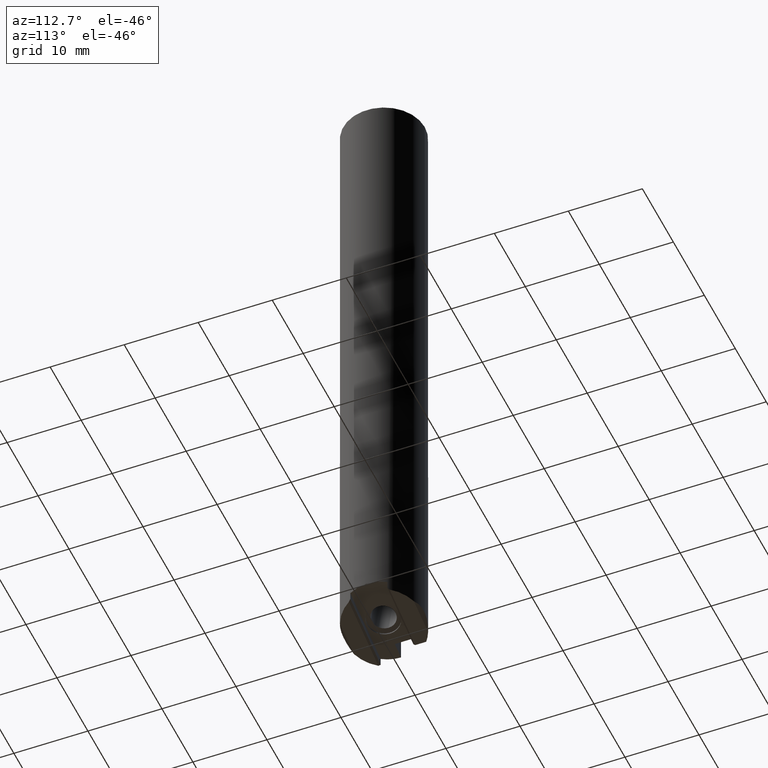
[diagram: clean part render]
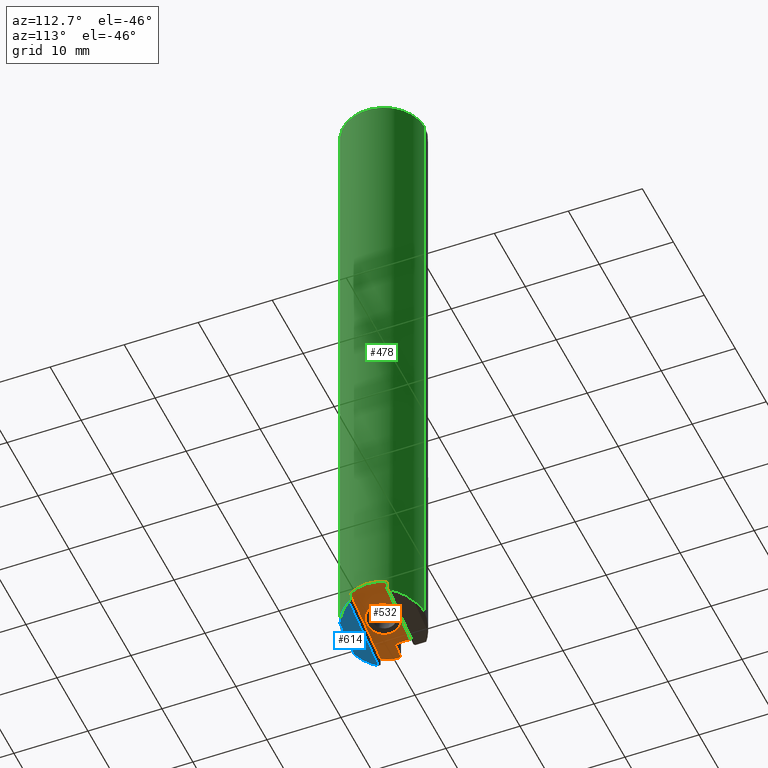
[diagram: same view with three faces highlighted in distinct colors, each labeled with its STEP entity id]
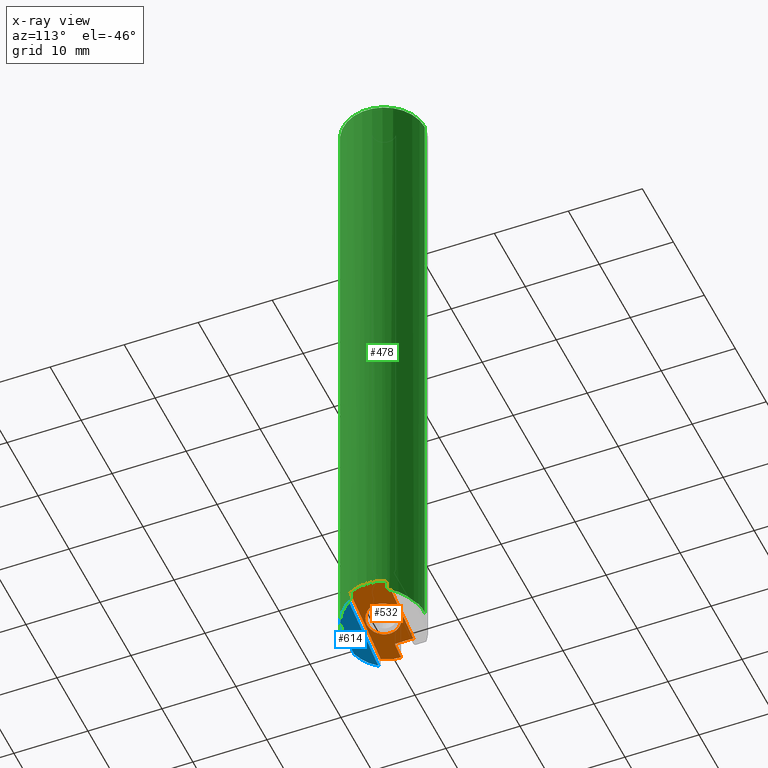
[diagram: x-ray of the same camera — body ghosted, the three highlighted faces saturated]
A machine part, auxiliary view with three faces highlighted in distinct colors.
The next image is the same camera in x-ray (body ghosted, the three faces saturated) — at least one of them is partly hidden behind the body in this view.
Their STEP definitions:

[orange] entity #532 — the highlighted planar face has unit normal (-0.2419, 0, 0.9703).
#322=VERTEX_POINT('NONE',#922);
#342=VERTEX_POINT('NONE',#945);
#380=EDGE_CURVE('NONE',#342,#792,#986,.T.);
#420=VERTEX_POINT('NONE',#1026);
#438=VERTEX_POINT('NONE',#1045);
#444=EDGE_CURVE('NONE',#766,#420,#1051,.T.);
#448=EDGE_CURVE('NONE',#322,#466,#1055,.T.);
#464=EDGE_CURVE('NONE',#874,#420,#1071,.T.);
#466=VERTEX_POINT('NONE',#1073);
#532=ADVANCED_FACE('NONE',(#1146,#1147),#1148,.F.);
#700=EDGE_CURVE('NONE',#766,#438,#1335,.T.);
#704=EDGE_CURVE('NONE',#792,#874,#1341,.T.);
#720=EDGE_CURVE('NONE',#438,#342,#1359,.T.);
#732=EDGE_CURVE('NONE',#466,#322,#1372,.T.);
#766=VERTEX_POINT('NONE',#1411);
#792=VERTEX_POINT('NONE',#1441);
#874=VERTEX_POINT('NONE',#1531);
#922=CARTESIAN_POINT('',(-1.95190510416878,2.75545529808154E-016,-10.8270935490369));
#945=CARTESIAN_POINT('',(-5.5,0.0,-11.7117329633126));
#986=(B_SPLINE_CURVE(3,(#1736,#1737,#1738,#1739),.UNSPECIFIED.,.F.,.F.)B_SPLINE_CURVE_WITH_KNOTS((4,4),(3.14159265358979,3.61345449086943),.UNSPECIFIED.)RATIONAL_B_SPLINE_CURVE((1.0,0.981531441395684,0.981531441395684,1.0))BOUNDED_CURVE()REPRESENTATION_ITEM('')GEOMETRIC_REPRESENTATION_ITEM()CURVE());
#1026=CARTESIAN_POINT('',(4.89897948556636,2.5,-9.11897617656915));
#1045=CARTESIAN_POINT('',(-3.5,0.0,-11.2130769576263));
#1051=LINE('',#1883,#1884);
#1055=CIRCLE('',#1900,2.25);
#1071=(B_SPLINE_CURVE(3,(#1940,#1941,#1942,#1943),.UNSPECIFIED.,.F.,.F.)B_SPLINE_CURVE_WITH_KNOTS((4,4),(5.81132346989994,6.75504714445923),.UNSPECIFIED.)RATIONAL_B_SPLINE_CURVE((1.0,0.927149028553498,0.927149028553498,1.0))BOUNDED_CURVE()REPRESENTATION_ITEM('')GEOMETRIC_REPRESENTATION_ITEM()CURVE());
#1073=CARTESIAN_POINT('',(2.4144256640732,0.0,-9.73844501883844));
#1146=FACE_OUTER_BOUND('',#2138,.T.);
#1147=FACE_BOUND('',#2139,.T.);
#1148=PLANE('',#2140);
#1335=LINE('',#2487,#2488);
#1341=LINE('',#2495,#2496);
#1359=LINE('',#2519,#2520);
#1372=CIRCLE('',#2536,2.25);
#1411=CARTESIAN_POINT('',(-3.5,2.5,-11.2130769576263));
#1441=CARTESIAN_POINT('',(-4.89897948556636,-2.5,-11.5618817187811));
#1531=CARTESIAN_POINT('',(4.89897948556636,-2.5,-9.11897617656915));
#1736=CARTESIAN_POINT('',(-5.5,0.0,-11.7117329633126));
#1737=CARTESIAN_POINT('',(-5.5,-0.873203604745345,-11.7117329633126));
#1738=CARTESIAN_POINT('',(-5.29589021499606,-1.72221699156908,-11.6608426782568));
#1739=CARTESIAN_POINT('',(-4.89897948556636,-2.5,-11.5618817187811));
#1883=CARTESIAN_POINT('',(13.0,2.5,-7.09916491071377));
#1884=VECTOR('',#2998,1000.0);
#1900=AXIS2_PLACEMENT_3D('',#2999,#3000,#3001);
#1940=CARTESIAN_POINT('',(4.89897948556636,-2.5,-9.11897617656915));
#1941=CARTESIAN_POINT('',(5.71608195156117,-0.898812712594295,-8.91524965060442));
#1942=CARTESIAN_POINT('',(5.71608195156117,0.898812712594293,-8.91524965060442));
#1943=CARTESIAN_POINT('',(4.89897948556636,2.5,-9.11897617656915));
#2138=EDGE_LOOP('',(#3090,#3091,#3092,#3093,#3094,#3095));
#2139=EDGE_LOOP('',(#3096,#3097));
#2140=AXIS2_PLACEMENT_3D('',#3098,#3099,#3100);
#2487=CARTESIAN_POINT('',(-3.5,-2.5,-11.2130769576263));
#2488=VECTOR('',#3313,1000.0);
#2495=CARTESIAN_POINT('',(13.0,-2.5,-7.09916491071377));
#2496=VECTOR('',#3322,1000.0);
#2519=CARTESIAN_POINT('',(13.0,0.0,-7.09916491071377));
#2520=VECTOR('',#3347,1000.0);
#2536=AXIS2_PLACEMENT_3D('',#3356,#3357,#3358);
#2998=DIRECTION('',(0.970295726275996,-0.0,0.241921895599668));
#2999=CARTESIAN_POINT('',(0.231260279952212,0.0,-10.2827692839377));
#3000=DIRECTION('',(0.241921895599668,0.0,-0.970295726275996));
#3001=DIRECTION('',(0.970295726275996,0.0,0.241921895599668));
#3090=ORIENTED_EDGE('',*,*,#700,.F.);
#3091=ORIENTED_EDGE('',*,*,#444,.T.);
#3092=ORIENTED_EDGE('',*,*,#464,.F.);
#3093=ORIENTED_EDGE('',*,*,#704,.F.);
#3094=ORIENTED_EDGE('',*,*,#380,.F.);
#3095=ORIENTED_EDGE('',*,*,#720,.F.);
#3096=ORIENTED_EDGE('',*,*,#732,.F.);
#3097=ORIENTED_EDGE('',*,*,#448,.F.);
#3098=CARTESIAN_POINT('',(13.0,-2.5,-7.09916491071377));
#3099=DIRECTION('',(-0.241921895599668,0.0,0.970295726275996));
#3100=DIRECTION('',(0.0,1.0,0.0));
#3313=DIRECTION('',(0.0,-1.0,0.0));
#3322=DIRECTION('',(0.970295726275996,-0.0,0.241921895599668));
#3347=DIRECTION('',(-0.970295726275996,0.0,-0.241921895599668));
#3356=CARTESIAN_POINT('',(0.231260279952212,0.0,-10.2827692839377));
#3357=DIRECTION('',(0.241921895599668,0.0,-0.970295726275996));
#3358=DIRECTION('',(0.970295726275996,0.0,0.241921895599668));

[blue] entity #614 — the highlighted planar face has unit normal (-0.2419, 0, 0.9703).
#414=VERTEX_POINT('NONE',#1020);
#446=EDGE_CURVE('NONE',#858,#782,#1053,.T.);
#454=EDGE_CURVE('NONE',#582,#782,#1061,.T.);
#490=EDGE_CURVE('NONE',#858,#414,#1098,.T.);
#582=VERTEX_POINT('NONE',#1204);
#614=ADVANCED_FACE('NONE',(#1242),#1243,.F.);
#744=EDGE_CURVE('NONE',#582,#414,#1385,.T.);
#782=VERTEX_POINT('NONE',#1429);
#858=VERTEX_POINT('NONE',#1515);
#1020=CARTESIAN_POINT('',(4.76313972081442,-2.75,-10.4411118705088));
#1053=(B_SPLINE_CURVE(3,(#1888,#1889,#1890,#1891),.UNSPECIFIED.,.F.,.F.)B_SPLINE_CURVE_WITH_KNOTS((4,4),(3.66519142918809,4.28268931423327),.UNSPECIFIED.)RATIONAL_B_SPLINE_CURVE((1.0,0.968476313602969,0.968476313602969,1.0))BOUNDED_CURVE()REPRESENTATION_ITEM('')GEOMETRIC_REPRESENTATION_ITEM()CURVE());
#1061=LINE('',#1909,#1910);
#1098=LINE('',#2032,#2033);
#1204=CARTESIAN_POINT('',(2.29128784747791,-5.0,-11.057413761412));
#1242=FACE_OUTER_BOUND('',#2302,.T.);
#1243=PLANE('',#2303);
#1385=(B_SPLINE_CURVE(3,(#2567,#2568,#2569,#2570),.UNSPECIFIED.,.F.,.F.)B_SPLINE_CURVE_WITH_KNOTS((4,4),(5.14208864653611,5.75958653158129),.UNSPECIFIED.)RATIONAL_B_SPLINE_CURVE((1.0,0.968476313602969,0.968476313602969,1.0))BOUNDED_CURVE()REPRESENTATION_ITEM('')GEOMETRIC_REPRESENTATION_ITEM()CURVE());
#1429=CARTESIAN_POINT('',(-2.29128784747792,-5.0,-12.199978207313));
#1515=CARTESIAN_POINT('',(-4.76313972081442,-2.75,-12.8162800982162));
#1888=CARTESIAN_POINT('',(-4.76313972081442,-2.75,-12.8162800982162));
#1889=CARTESIAN_POINT('',(-4.1879171320008,-3.74631474948647,-12.672860998957));
#1890=CARTESIAN_POINT('',(-3.33714709986631,-4.52072708096603,-12.4607402059661));
#1891=CARTESIAN_POINT('',(-2.29128784747792,-5.0,-12.199978207313));
#1909=CARTESIAN_POINT('',(-5.5,-5.0,-13.0));
#1910=VECTOR('',#3003,1000.0);
#2032=CARTESIAN_POINT('',(-5.5,-2.75,-13.0));
#2033=VECTOR('',#3025,1000.0);
#2302=EDGE_LOOP('',(#3234,#3235,#3236,#3237));
#2303=AXIS2_PLACEMENT_3D('',#3238,#3239,#3240);
#2567=CARTESIAN_POINT('',(2.29128784747791,-5.0,-11.057413761412));
#2568=CARTESIAN_POINT('',(3.3371470998663,-4.52072708096603,-10.7966517627589));
#2569=CARTESIAN_POINT('',(4.1879171320008,-3.74631474948648,-10.584530969768));
#2570=CARTESIAN_POINT('',(4.76313972081442,-2.75,-10.4411118705088));
#3003=DIRECTION('',(-0.970295726275996,0.0,-0.241921895599668));
#3025=DIRECTION('',(0.970295726275996,0.0,0.241921895599668));
#3234=ORIENTED_EDGE('',*,*,#744,.F.);
#3235=ORIENTED_EDGE('',*,*,#454,.T.);
#3236=ORIENTED_EDGE('',*,*,#446,.F.);
#3237=ORIENTED_EDGE('',*,*,#490,.T.);
#3238=CARTESIAN_POINT('',(-5.5,-25.0,-13.0));
#3239=DIRECTION('',(-0.241921895599668,0.0,0.970295726275996));
#3240=DIRECTION('',(0.0,1.0,0.0));

[green] entity #478 — the highlighted cylindrical surface (partial cylindrical patch) has radius 5.5 mm, axis along (-0, -0, 1).
#316=EDGE_CURVE('NONE',#508,#420,#916,.T.);
#318=VERTEX_POINT('NONE',#918);
#320=VERTEX_POINT('NONE',#920);
#372=EDGE_CURVE('NONE',#414,#644,#978,.T.);
#402=VERTEX_POINT('NONE',#1008);
#414=VERTEX_POINT('NONE',#1020);
#420=VERTEX_POINT('NONE',#1026);
#422=VERTEX_POINT('NONE',#1028);
#464=EDGE_CURVE('NONE',#874,#420,#1071,.T.);
#476=EDGE_CURVE('NONE',#508,#876,#1083,.T.);
#478=ADVANCED_FACE('NONE',(#1085),#1086,.T.);
#504=VERTEX_POINT('NONE',#1114);
#508=VERTEX_POINT('NONE',#1118);
#522=EDGE_CURVE('NONE',#644,#874,#1133,.T.);
#542=EDGE_CURVE('NONE',#402,#582,#1160,.T.);
#582=VERTEX_POINT('NONE',#1204);
#598=EDGE_CURVE('NONE',#876,#318,#1221,.T.);
#644=VERTEX_POINT('NONE',#1277);
#728=EDGE_CURVE('NONE',#402,#504,#1368,.T.);
#734=EDGE_CURVE('NONE',#422,#504,#1374,.T.);
#744=EDGE_CURVE('NONE',#582,#414,#1385,.T.);
#804=EDGE_CURVE('NONE',#320,#422,#1454,.T.);
#830=EDGE_CURVE('NONE',#318,#320,#1485,.T.);
#874=VERTEX_POINT('NONE',#1531);
#876=VERTEX_POINT('NONE',#1533);
#916=LINE('',#1565,#1566);
#918=CARTESIAN_POINT('',(2.29128784747792,5.0,-11.057413761412));
#920=CARTESIAN_POINT('',(0.0,5.5,-11.1133891696876));
#978=(B_SPLINE_CURVE(3,(#1702,#1703,#1704,#1705),.UNSPECIFIED.,.F.,.F.)B_SPLINE_CURVE_WITH_KNOTS((4,4),(4.42615161482737,4.47788855314603),.UNSPECIFIED.)RATIONAL_B_SPLINE_CURVE((1.0,0.999776953206362,0.999776953206362,1.0))BOUNDED_CURVE()REPRESENTATION_ITEM('')GEOMETRIC_REPRESENTATION_ITEM()CURVE());
#1008=CARTESIAN_POINT('',(-6.73555739531044E-016,-5.5,-11.1133891696876));
#1020=CARTESIAN_POINT('',(4.76313972081442,-2.75,-10.4411118705088));
#1026=CARTESIAN_POINT('',(4.89897948556636,2.5,-9.11897617656915));
#1028=CARTESIAN_POINT('',(0.0,5.5,76.0));
#1071=(B_SPLINE_CURVE(3,(#1940,#1941,#1942,#1943),.UNSPECIFIED.,.F.,.F.)B_SPLINE_CURVE_WITH_KNOTS((4,4),(5.81132346989994,6.75504714445923),.UNSPECIFIED.)RATIONAL_B_SPLINE_CURVE((1.0,0.927149028553498,0.927149028553498,1.0))BOUNDED_CURVE()REPRESENTATION_ITEM('')GEOMETRIC_REPRESENTATION_ITEM()CURVE());
#1083=(B_SPLINE_CURVE(3,(#1980,#1981,#1982,#1983),.UNSPECIFIED.,.F.,.F.)B_SPLINE_CURVE_WITH_KNOTS((4,4),(1.80529675403356,1.85703369235222),.UNSPECIFIED.)RATIONAL_B_SPLINE_CURVE((1.0,0.999776953206362,0.999776953206362,1.0))BOUNDED_CURVE()REPRESENTATION_ITEM('')GEOMETRIC_REPRESENTATION_ITEM()CURVE());
#1085=FACE_OUTER_BOUND('',#1991,.T.);
#1086=CYLINDRICAL_SURFACE('',#1992,5.5);
#1114=CARTESIAN_POINT('',(-6.73555739531044E-016,-5.5,76.0));
#1118=CARTESIAN_POINT('',(4.89897948556636,2.5,-10.1495898059191));
#1133=LINE('',#2120,#2121);
#1160=(B_SPLINE_CURVE(3,(#2156,#2157,#2158,#2159),.UNSPECIFIED.,.F.,.F.)B_SPLINE_CURVE_WITH_KNOTS((4,4),(6.04582389713861,6.47552356329003),.UNSPECIFIED.)RATIONAL_B_SPLINE_CURVE((1.0,0.984672280612263,0.984672280612263,1.0))BOUNDED_CURVE()REPRESENTATION_ITEM('')GEOMETRIC_REPRESENTATION_ITEM()CURVE());
#1204=CARTESIAN_POINT('',(2.29128784747791,-5.0,-11.057413761412));
#1221=(B_SPLINE_CURVE(3,(#2271,#2272,#2273,#2274),.UNSPECIFIED.,.F.,.F.)B_SPLINE_CURVE_WITH_KNOTS((4,4),(0.523598775598299,1.14109666064347),.UNSPECIFIED.)RATIONAL_B_SPLINE_CURVE((1.0,0.968476313602969,0.968476313602969,1.0))BOUNDED_CURVE()REPRESENTATION_ITEM('')GEOMETRIC_REPRESENTATION_ITEM()CURVE());
#1277=CARTESIAN_POINT('',(4.89897948556636,-2.5,-10.1495898059191));
#1368=LINE('',#2530,#2531);
#1374=CIRCLE('',#2539,5.5);
#1385=(B_SPLINE_CURVE(3,(#2567,#2568,#2569,#2570),.UNSPECIFIED.,.F.,.F.)B_SPLINE_CURVE_WITH_KNOTS((4,4),(5.14208864653611,5.75958653158129),.UNSPECIFIED.)RATIONAL_B_SPLINE_CURVE((1.0,0.968476313602969,0.968476313602969,1.0))BOUNDED_CURVE()REPRESENTATION_ITEM('')GEOMETRIC_REPRESENTATION_ITEM()CURVE());
#1454=LINE('',#2696,#2697);
#1485=(B_SPLINE_CURVE(3,(#2748,#2749,#2750,#2751),.UNSPECIFIED.,.F.,.F.)B_SPLINE_CURVE_WITH_KNOTS((4,4),(6.09084705106914,6.52054671722057),.UNSPECIFIED.)RATIONAL_B_SPLINE_CURVE((1.0,0.984672280612263,0.984672280612263,1.0))BOUNDED_CURVE()REPRESENTATION_ITEM('')GEOMETRIC_REPRESENTATION_ITEM()CURVE());
#1531=CARTESIAN_POINT('',(4.89897948556636,-2.5,-9.11897617656915));
#1533=CARTESIAN_POINT('',(4.76313972081441,2.75,-10.4411118705088));
#1565=CARTESIAN_POINT('',(4.89897948556636,2.5,0.0));
#1566=VECTOR('',#2908,1000.0);
#1702=CARTESIAN_POINT('',(4.76313972081442,-2.75,-10.4411118705088));
#1703=CARTESIAN_POINT('',(4.81057053772432,-2.66784741526754,-10.3446184661439));
#1704=CARTESIAN_POINT('',(4.8558605611028,-2.58449549055465,-10.2474227654245));
#1705=CARTESIAN_POINT('',(4.89897948556636,-2.5,-10.1495898059191));
#1940=CARTESIAN_POINT('',(4.89897948556636,-2.5,-9.11897617656915));
#1941=CARTESIAN_POINT('',(5.71608195156117,-0.898812712594295,-8.91524965060442));
#1942=CARTESIAN_POINT('',(5.71608195156117,0.898812712594293,-8.91524965060442));
#1943=CARTESIAN_POINT('',(4.89897948556636,2.5,-9.11897617656915));
#1980=CARTESIAN_POINT('',(4.89897948556636,2.5,-10.1495898059191));
#1981=CARTESIAN_POINT('',(4.8558605611028,2.58449549055466,-10.2474227654245));
#1982=CARTESIAN_POINT('',(4.81057053772432,2.66784741526754,-10.3446184661439));
#1983=CARTESIAN_POINT('',(4.76313972081441,2.75,-10.4411118705088));
#1991=EDGE_LOOP('',(#3010,#3011,#3012,#3013,#3014,#3015,#3016,#3017,#3018,#3019,#3020,#3021));
#1992=AXIS2_PLACEMENT_3D('',#3022,#3023,#3024);
#2120=CARTESIAN_POINT('',(4.89897948556636,-2.5,0.0));
#2121=VECTOR('',#3064,1000.0);
#2156=CARTESIAN_POINT('',(-6.73555739531044E-016,-5.5,-11.1133891696876));
#2157=CARTESIAN_POINT('',(0.79390470856404,-5.5,-10.9154464942535));
#2158=CARTESIAN_POINT('',(1.56955629423788,-5.33073894741606,-10.8964975812064));
#2159=CARTESIAN_POINT('',(2.29128784747791,-5.0,-11.057413761412));
#2271=CARTESIAN_POINT('',(4.76313972081441,2.75,-10.4411118705088));
#2272=CARTESIAN_POINT('',(4.1879171320008,3.74631474948648,-10.584530969768));
#2273=CARTESIAN_POINT('',(3.3371470998663,4.52072708096603,-10.7966517627589));
#2274=CARTESIAN_POINT('',(2.29128784747792,5.0,-11.057413761412));
#2530=CARTESIAN_POINT('',(-6.73555739531044E-016,-5.5,0.0));
#2531=VECTOR('',#3355,1000.0);
#2539=AXIS2_PLACEMENT_3D('',#3359,#3360,#3361);
#2567=CARTESIAN_POINT('',(2.29128784747791,-5.0,-11.057413761412));
#2568=CARTESIAN_POINT('',(3.3371470998663,-4.52072708096603,-10.7966517627589));
#2569=CARTESIAN_POINT('',(4.1879171320008,-3.74631474948648,-10.584530969768));
#2570=CARTESIAN_POINT('',(4.76313972081442,-2.75,-10.4411118705088));
#2696=CARTESIAN_POINT('',(0.0,5.5,0.0));
#2697=VECTOR('',#3469,1000.0);
#2748=CARTESIAN_POINT('',(2.29128784747792,5.0,-11.057413761412));
#2749=CARTESIAN_POINT('',(1.56955629423788,5.33073894741606,-10.8964975812064));
#2750=CARTESIAN_POINT('',(0.793904708564042,5.5,-10.9154464942535));
#2751=CARTESIAN_POINT('',(0.0,5.5,-11.1133891696876));
#2908=DIRECTION('',(0.0,-0.0,1.0));
#3010=ORIENTED_EDGE('',*,*,#728,.F.);
#3011=ORIENTED_EDGE('',*,*,#542,.T.);
#3012=ORIENTED_EDGE('',*,*,#744,.T.);
#3013=ORIENTED_EDGE('',*,*,#372,.T.);
#3014=ORIENTED_EDGE('',*,*,#522,.T.);
#3015=ORIENTED_EDGE('',*,*,#464,.T.);
#3016=ORIENTED_EDGE('',*,*,#316,.F.);
#3017=ORIENTED_EDGE('',*,*,#476,.T.);
#3018=ORIENTED_EDGE('',*,*,#598,.T.);
#3019=ORIENTED_EDGE('',*,*,#830,.T.);
#3020=ORIENTED_EDGE('',*,*,#804,.T.);
#3021=ORIENTED_EDGE('',*,*,#734,.T.);
#3022=CARTESIAN_POINT('',(0.0,0.0,0.0));
#3023=DIRECTION('',(-0.0,-0.0,1.0));
#3024=DIRECTION('',(0.0,1.0,0.0));
#3064=DIRECTION('',(0.0,-0.0,1.0));
#3355=DIRECTION('',(0.0,-0.0,1.0));
#3359=CARTESIAN_POINT('',(0.0,0.0,76.0));
#3360=DIRECTION('',(0.0,0.0,-1.0));
#3361=DIRECTION('',(0.0,1.0,0.0));
#3469=DIRECTION('',(0.0,-0.0,1.0));